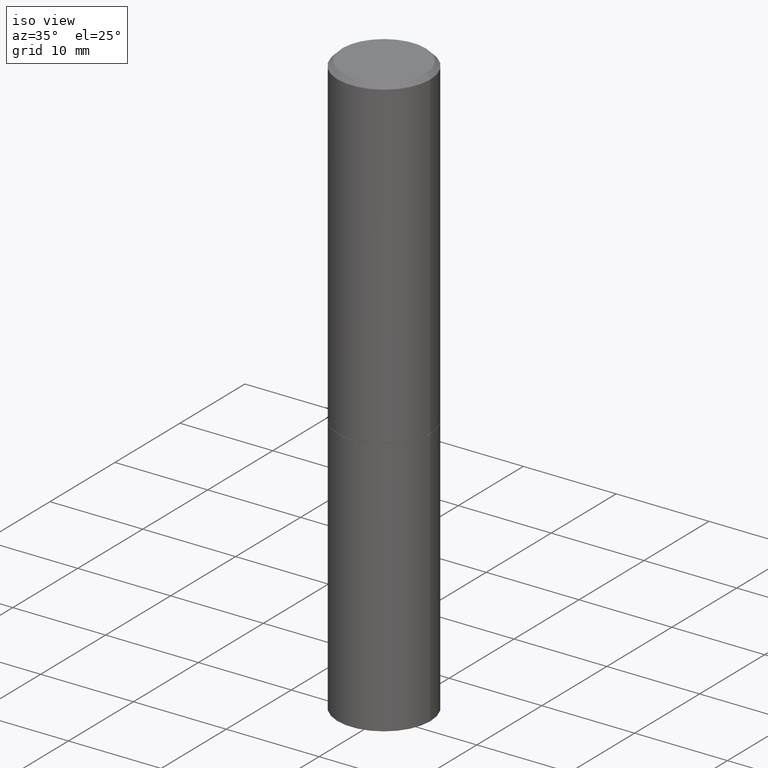
[diagram: clean part render]
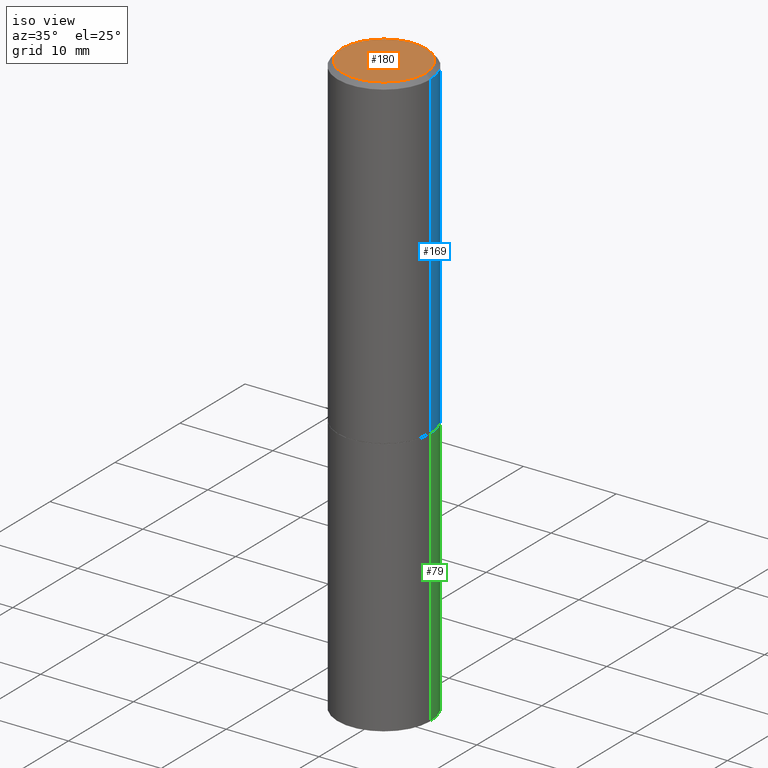
[diagram: same view with three faces highlighted in distinct colors, each labeled with its STEP entity id]
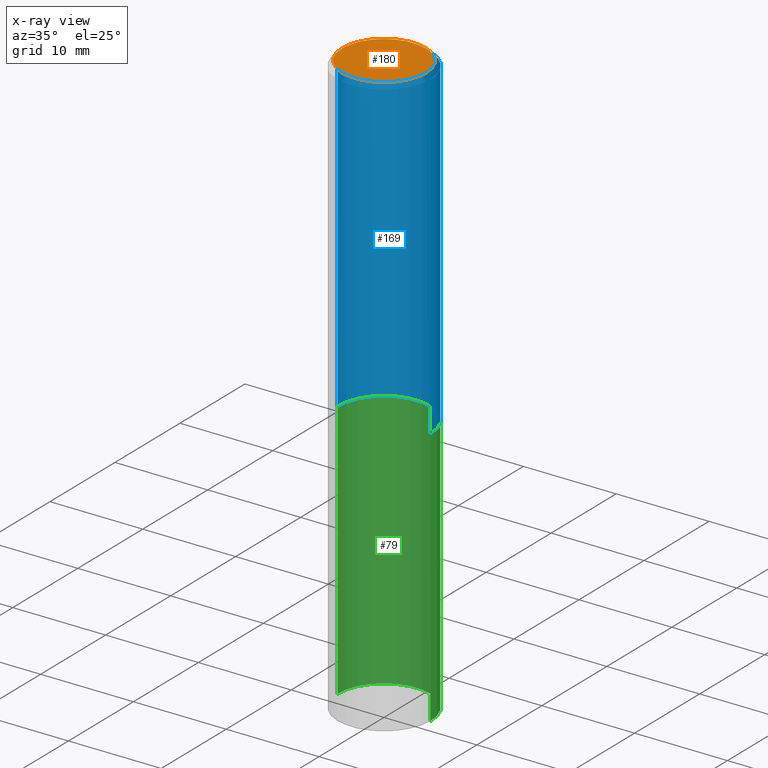
[diagram: x-ray of the same camera — body ghosted, the three highlighted faces saturated]
A machine part, iso view with three faces highlighted in distinct colors.
The next image is the same camera in x-ray (body ghosted, the three faces saturated) — at least one of them is partly hidden behind the body in this view.
Their STEP definitions:

[orange] entity #180 — the highlighted planar face has unit normal (0, -0, -1).
#21 = EDGE_CURVE ( 'NONE', #130, #211, #213, .T. ) ;
#44 = ORIENTED_EDGE ( 'NONE', *, *, #112, .T. ) ;
#72 = CARTESIAN_POINT ( 'NONE',  ( -1.043851414335219820E-46, 1.490343170380447200E-32, 4.268512490100411279E-18 ) ) ;
#112 = EDGE_CURVE ( 'NONE', #211, #130, #175, .T. ) ;
#121 = ORIENTED_EDGE ( 'NONE', *, *, #21, .T. ) ;
#130 = VERTEX_POINT ( 'NONE', #283 ) ;
#153 = PLANE ( 'NONE',  #286 ) ;
#163 = DIRECTION ( 'NONE',  ( 2.438088387897960049E-29, -3.491481338843145188E-15, -1.000000000000000000 ) ) ;
#175 = CIRCLE ( 'NONE', #249, 0.1768499999999997851 ) ;
#178 = DIRECTION ( 'NONE',  ( -2.445468806185136597E-29, 3.491481338843145583E-15, 1.000000000000000000 ) ) ;
#180 = ADVANCED_FACE ( 'NONE', ( #184 ), #153, .F. ) ;
#184 = FACE_OUTER_BOUND ( 'NONE', #339, .T. ) ;
#206 = CARTESIAN_POINT ( 'NONE',  ( -1.043851414335219820E-46, 1.490343170380447200E-32, 4.268512490100411279E-18 ) ) ;
#210 = CARTESIAN_POINT ( 'NONE',  ( 0.1768499999999997851, -1.316798864272040563E-15, 4.268512490109333727E-18 ) ) ;
#211 = VERTEX_POINT ( 'NONE', #210 ) ;
#213 = CIRCLE ( 'NONE', #235, 0.1768499999999997851 ) ;
#235 = AXIS2_PLACEMENT_3D ( 'NONE', #206, #178, #277 ) ;
#249 = AXIS2_PLACEMENT_3D ( 'NONE', #72, #285, #287 ) ;
#255 = CARTESIAN_POINT ( 'NONE',  ( 1.234936949548814617E-15, 0.1768499999999997851, -6.153342185293593634E-16 ) ) ;
#277 = DIRECTION ( 'NONE',  ( 1.000000000000000000, -6.982962677686266711E-15, 4.875932113059884174E-29 ) ) ;
#283 = CARTESIAN_POINT ( 'NONE',  ( -0.1768499999999997851, 1.269851762937246069E-15, 4.268512490091652920E-18 ) ) ;
#285 = DIRECTION ( 'NONE',  ( -2.445468806185136597E-29, 3.491481338843145583E-15, 1.000000000000000000 ) ) ;
#286 = AXIS2_PLACEMENT_3D ( 'NONE', #255, #163, #319 ) ;
#287 = DIRECTION ( 'NONE',  ( 1.000000000000000000, -6.982962677686266711E-15, 4.875932113059884174E-29 ) ) ;
#319 = DIRECTION ( 'NONE',  ( -1.000000000000000000, 6.982962677686265922E-15, -4.876176775795935793E-29 ) ) ;
#339 = EDGE_LOOP ( 'NONE', ( #121, #44 ) ) ;

[blue] entity #169 — the highlighted cylindrical surface (partial cylindrical patch) has radius 5 mm, axis along (-0, 0, 1).
#6 = EDGE_CURVE ( 'NONE', #132, #109, #312, .T. ) ;
#26 = CIRCLE ( 'NONE', #199, 0.1968499999999997752 ) ;
#39 = LINE ( 'NONE', #157, #106 ) ;
#40 = VERTEX_POINT ( 'NONE', #89 ) ;
#45 = CIRCLE ( 'NONE', #327, 0.1968499999999999417 ) ;
#48 = EDGE_LOOP ( 'NONE', ( #240, #329, #303, #73 ) ) ;
#73 = ORIENTED_EDGE ( 'NONE', *, *, #6, .F. ) ;
#74 = CARTESIAN_POINT ( 'NONE',  ( 4.890937612370283668E-31, -6.982962677686305168E-17, -0.02000000000000004205 ) ) ;
#75 = CYLINDRICAL_SURFACE ( 'NONE', #260, 0.1968499999999998307 ) ;
#76 = DIRECTION ( 'NONE',  ( 1.000000000000000000, -6.982962677686266711E-15, 4.876176775795935793E-29 ) ) ;
#89 = CARTESIAN_POINT ( 'NONE',  ( -0.1968499999999999417, -1.039921765771237577E-15, -1.376900000000000013 ) ) ;
#93 = CARTESIAN_POINT ( 'NONE',  ( 0.1968499999999997752, -1.420318657638187544E-15, -0.02000000000000004205 ) ) ;
#100 = FACE_OUTER_BOUND ( 'NONE', #48, .T. ) ;
#102 = EDGE_CURVE ( 'NONE', #132, #40, #45, .T. ) ;
#106 = VECTOR ( 'NONE', #342, 39.37007874015748143 ) ;
#109 = VERTEX_POINT ( 'NONE', #93 ) ;
#114 = EDGE_CURVE ( 'NONE', #40, #234, #39, .T. ) ;
#116 = VECTOR ( 'NONE', #147, 39.37007874015748143 ) ;
#132 = VERTEX_POINT ( 'NONE', #261 ) ;
#147 = DIRECTION ( 'NONE',  ( -2.445468806185136877E-29, 3.491481338843145188E-15, 1.000000000000000000 ) ) ;
#157 = CARTESIAN_POINT ( 'NONE',  ( -0.1968499999999998307, 1.398703375343756013E-15, -9.682923725166775270E-30 ) ) ;
#165 = CARTESIAN_POINT ( 'NONE',  ( -0.1968499999999997752, 1.304766576325676930E-15, -0.02000000000000004205 ) ) ;
#169 = ADVANCED_FACE ( 'NONE', ( #100 ), #75, .T. ) ;
#182 = CARTESIAN_POINT ( 'NONE',  ( 3.367165999236314681E-29, -4.807420655453126643E-15, -1.376900000000000013 ) ) ;
#195 = DIRECTION ( 'NONE',  ( -2.445468806185136597E-29, 3.491481338843145583E-15, 1.000000000000000000 ) ) ;
#199 = AXIS2_PLACEMENT_3D ( 'NONE', #74, #195, #359 ) ;
#212 = CARTESIAN_POINT ( 'NONE',  ( 0.000000000000000000, 0.000000000000000000, 0.000000000000000000 ) ) ;
#231 = EDGE_CURVE ( 'NONE', #109, #234, #26, .T. ) ;
#234 = VERTEX_POINT ( 'NONE', #165 ) ;
#238 = DIRECTION ( 'NONE',  ( -2.445468806185136597E-29, 3.491481338843145583E-15, 1.000000000000000000 ) ) ;
#240 = ORIENTED_EDGE ( 'NONE', *, *, #102, .T. ) ;
#257 = DIRECTION ( 'NONE',  ( 1.000000000000000000, -6.982962677686265922E-15, 0.000000000000000000 ) ) ;
#260 = AXIS2_PLACEMENT_3D ( 'NONE', #212, #262, #76 ) ;
#261 = CARTESIAN_POINT ( 'NONE',  ( 0.1968499999999999417, -6.182016858555667463E-15, -1.376900000000000013 ) ) ;
#262 = DIRECTION ( 'NONE',  ( -2.445468806185136597E-29, 3.491481338843145583E-15, 1.000000000000000000 ) ) ;
#303 = ORIENTED_EDGE ( 'NONE', *, *, #231, .F. ) ;
#312 = LINE ( 'NONE', #335, #116 ) ;
#327 = AXIS2_PLACEMENT_3D ( 'NONE', #182, #238, #257 ) ;
#329 = ORIENTED_EDGE ( 'NONE', *, *, #114, .T. ) ;
#335 = CARTESIAN_POINT ( 'NONE',  ( 0.1968499999999998307, -1.374596203102540425E-15, 9.598753983154291049E-30 ) ) ;
#342 = DIRECTION ( 'NONE',  ( -2.445468806185136877E-29, 3.491481338843145188E-15, 1.000000000000000000 ) ) ;
#359 = DIRECTION ( 'NONE',  ( 1.000000000000000000, -6.982962677686266711E-15, 0.000000000000000000 ) ) ;

[green] entity #79 — the highlighted cylindrical surface (partial cylindrical patch) has radius 5 mm, axis along (-0, 0, 1).
#23 = CARTESIAN_POINT ( 'NONE',  ( 0.1968500000000000250, -6.185508339894512836E-15, -1.377900000000000125 ) ) ;
#30 = VERTEX_POINT ( 'NONE', #35 ) ;
#33 = DIRECTION ( 'NONE',  ( 1.000000000000000000, -6.982962677686267499E-15, 0.000000000000000000 ) ) ;
#35 = CARTESIAN_POINT ( 'NONE',  ( -0.1968500000000000250, -5.336713275418556283E-15, -1.377900000000000125 ) ) ;
#38 = AXIS2_PLACEMENT_3D ( 'NONE', #135, #264, #221 ) ;
#50 = EDGE_CURVE ( 'NONE', #236, #30, #146, .T. ) ;
#63 = CARTESIAN_POINT ( 'NONE',  ( 3.369611468042499724E-29, -4.810912136791970439E-15, -1.377900000000000125 ) ) ;
#69 = ORIENTED_EDGE ( 'NONE', *, *, #344, .T. ) ;
#79 = ADVANCED_FACE ( 'NONE', ( #98 ), #181, .T. ) ;
#94 = CARTESIAN_POINT ( 'NONE',  ( 0.000000000000000000, 0.000000000000000000, 0.000000000000000000 ) ) ;
#98 = FACE_OUTER_BOUND ( 'NONE', #183, .T. ) ;
#103 = CIRCLE ( 'NONE', #38, 0.1968500000000000250 ) ;
#125 = CARTESIAN_POINT ( 'NONE',  ( -0.1968500000000000250, -5.336713275418556283E-15, -2.480300000000000171 ) ) ;
#128 = EDGE_CURVE ( 'NONE', #190, #236, #279, .T. ) ;
#133 = ORIENTED_EDGE ( 'NONE', *, *, #128, .F. ) ;
#135 = CARTESIAN_POINT ( 'NONE',  ( 6.065496279980994755E-29, -8.659921164732655335E-15, -2.480300000000000171 ) ) ;
#136 = AXIS2_PLACEMENT_3D ( 'NONE', #63, #274, #33 ) ;
#138 = LINE ( 'NONE', #164, #162 ) ;
#146 = CIRCLE ( 'NONE', #136, 0.1968500000000000250 ) ;
#162 = VECTOR ( 'NONE', #293, 39.37007874015748143 ) ;
#164 = CARTESIAN_POINT ( 'NONE',  ( -0.1968500000000000250, 1.398703375343757393E-15, -9.682923725166783677E-30 ) ) ;
#181 = CYLINDRICAL_SURFACE ( 'NONE', #328, 0.1968500000000000250 ) ;
#183 = EDGE_LOOP ( 'NONE', ( #310, #69, #322, #133 ) ) ;
#190 = VERTEX_POINT ( 'NONE', #346 ) ;
#215 = DIRECTION ( 'NONE',  ( 1.000000000000000000, -6.982962677686265922E-15, 4.876176775795935793E-29 ) ) ;
#217 = DIRECTION ( 'NONE',  ( -2.445468806185136877E-29, 3.491481338843145188E-15, 1.000000000000000000 ) ) ;
#221 = DIRECTION ( 'NONE',  ( 1.000000000000000000, -6.982962677686267499E-15, 0.000000000000000000 ) ) ;
#228 = VERTEX_POINT ( 'NONE', #125 ) ;
#229 = VECTOR ( 'NONE', #217, 39.37007874015748143 ) ;
#236 = VERTEX_POINT ( 'NONE', #23 ) ;
#256 = CARTESIAN_POINT ( 'NONE',  ( 0.1968500000000000250, -1.374596203102541608E-15, 9.598753983154300858E-30 ) ) ;
#264 = DIRECTION ( 'NONE',  ( -2.445468806185136597E-29, 3.491481338843145583E-15, 1.000000000000000000 ) ) ;
#274 = DIRECTION ( 'NONE',  ( -2.445468806185136597E-29, 3.491481338843145583E-15, 1.000000000000000000 ) ) ;
#279 = LINE ( 'NONE', #256, #229 ) ;
#293 = DIRECTION ( 'NONE',  ( -2.445468806185136877E-29, 3.491481338843145188E-15, 1.000000000000000000 ) ) ;
#310 = ORIENTED_EDGE ( 'NONE', *, *, #331, .T. ) ;
#313 = DIRECTION ( 'NONE',  ( -2.445468806185136597E-29, 3.491481338843145583E-15, 1.000000000000000000 ) ) ;
#322 = ORIENTED_EDGE ( 'NONE', *, *, #50, .F. ) ;
#328 = AXIS2_PLACEMENT_3D ( 'NONE', #94, #313, #215 ) ;
#331 = EDGE_CURVE ( 'NONE', #190, #228, #103, .T. ) ;
#344 = EDGE_CURVE ( 'NONE', #228, #30, #138, .T. ) ;
#346 = CARTESIAN_POINT ( 'NONE',  ( 0.1968500000000000250, -1.003451736783519694E-14, -2.480300000000000171 ) ) ;